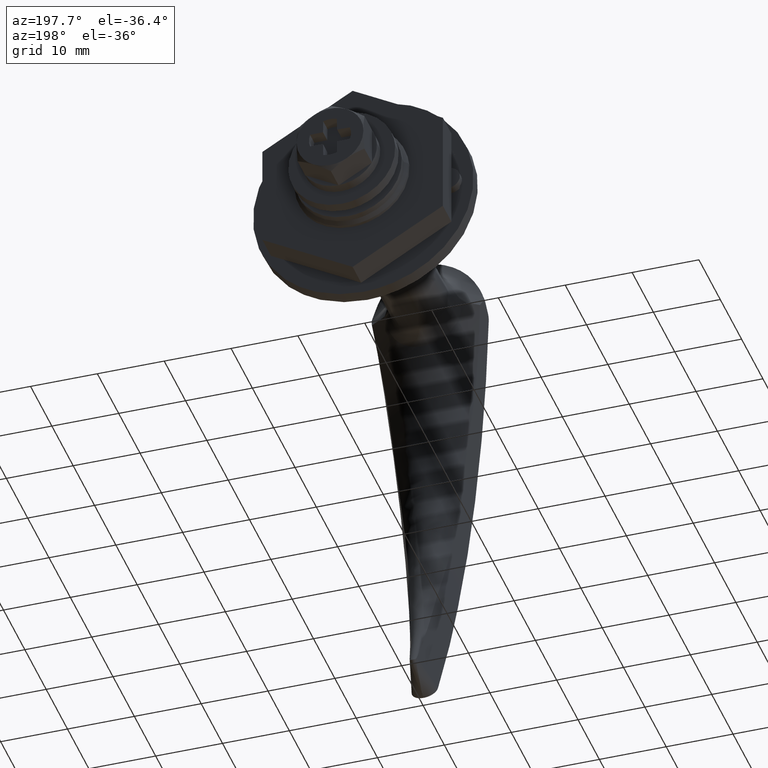
[diagram: clean part render]
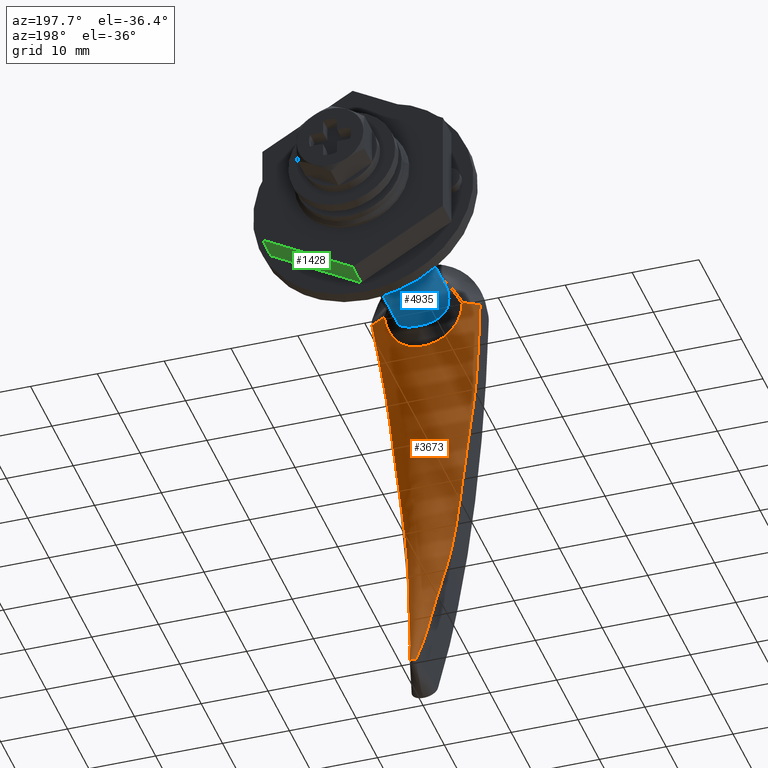
[diagram: same view with three faces highlighted in distinct colors, each labeled with its STEP entity id]
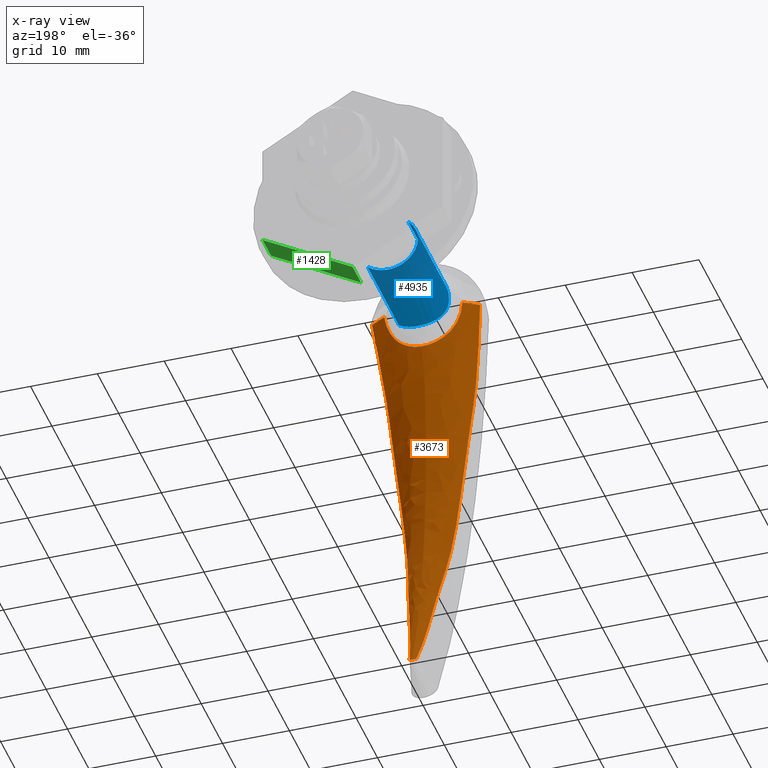
[diagram: x-ray of the same camera — body ghosted, the three highlighted faces saturated]
A machine part, auxiliary view with three faces highlighted in distinct colors.
The next image is the same camera in x-ray (body ghosted, the three faces saturated) — at least one of them is partly hidden behind the body in this view.
Their STEP definitions:

[orange] entity #3673 — the highlighted face is a freeform B-spline surface patch.
#2521=CARTESIAN_POINT('',(-0.936095192163730,-16.888858309234301,-61.499283405805400));
#2522=VERTEX_POINT('',#2521);
#2523=CARTESIAN_POINT('',(-0.528894862395192,-15.383664728495850,-65.001346558979094));
#2524=VERTEX_POINT('',#2523);
#2525=CARTESIAN_POINT('',(-0.936095192163729,-16.888858309234319,-61.499283405805372));
#2526=CARTESIAN_POINT('',(-0.798349343913122,-16.438143856093859,-62.684922845513363));
#2527=CARTESIAN_POINT('',(-0.663209480063971,-15.921364753533171,-63.846883866077107));
#2528=CARTESIAN_POINT('',(-0.528894862369655,-15.383664728393621,-65.001346559198652));
#2529=B_SPLINE_CURVE_WITH_KNOTS('',3,(#2525,#2526,#2527,#2528),.UNSPECIFIED.,.F.,.U.,(4,4),(0.950497373689708,1.0),.UNSPECIFIED.);
#2530=EDGE_CURVE('',#2522,#2524,#2529,.T.);
#2567=CARTESIAN_POINT('',(-8.088483985118950,-21.382506893682351,-9.733266E-016));
#2568=VERTEX_POINT('',#2567);
#2578=CARTESIAN_POINT('',(-6.751103507324760,-23.779140182856150,-11.499283405805359));
#2579=VERTEX_POINT('',#2578);
#2580=CARTESIAN_POINT('',(-8.088483985118950,-21.382506893682351,-9.733266E-016));
#2581=CARTESIAN_POINT('',(-7.646711654758347,-22.323849103457000,-3.798164090232185));
#2582=CARTESIAN_POINT('',(-7.199685001141654,-23.414148875372089,-7.640797533302037));
#2583=CARTESIAN_POINT('',(-6.751103507324760,-23.779140182856150,-11.499283405805359));
#2584=B_SPLINE_CURVE_WITH_KNOTS('',3,(#2580,#2581,#2582,#2583),.UNSPECIFIED.,.F.,.U.,(4,4),(0.114391476882390,0.266825240320656),.UNSPECIFIED.);
#2585=EDGE_CURVE('',#2568,#2579,#2584,.T.);
#2587=CARTESIAN_POINT('',(-5.588101844292540,-23.779140182856150,-21.499283405805350));
#2588=VERTEX_POINT('',#2587);
#2589=CARTESIAN_POINT('',(-6.751103507324756,-23.779140182856182,-11.499283405805370));
#2590=CARTESIAN_POINT('',(-6.364611216995100,-24.093634709751100,-14.823736254819901));
#2591=CARTESIAN_POINT('',(-5.976964580798010,-23.869697234583612,-18.159957253374909));
#2592=CARTESIAN_POINT('',(-5.588101844292536,-23.779140182856189,-21.499283405805372));
#2593=B_SPLINE_CURVE_WITH_KNOTS('',3,(#2589,#2590,#2591,#2592),.UNSPECIFIED.,.F.,.U.,(4,4),(0.266825446176739,0.398161814584562),.UNSPECIFIED.);
#2594=EDGE_CURVE('',#2579,#2588,#2593,.T.);
#2596=CARTESIAN_POINT('',(-4.425100181260334,-23.694648049077550,-31.499283405805301));
#2597=VERTEX_POINT('',#2596);
#2598=CARTESIAN_POINT('',(-5.588101844292535,-23.779140182856189,-21.499283405805372));
#2599=CARTESIAN_POINT('',(-5.200140678368175,-23.688793085866219,-24.830867396446742));
#2600=CARTESIAN_POINT('',(-4.810969044607601,-23.731208649523399,-28.165542159178869));
#2601=CARTESIAN_POINT('',(-4.425100181260361,-23.694648049077550,-31.499283405805130));
#2602=B_SPLINE_CURVE_WITH_KNOTS('',3,(#2598,#2599,#2600,#2601),.UNSPECIFIED.,.F.,.U.,(4,4),(0.398161814584562,0.529193682213912),.UNSPECIFIED.);
#2603=EDGE_CURVE('',#2588,#2597,#2602,.T.);
#2605=CARTESIAN_POINT('',(-3.269030969239590,-22.851923162419649,-41.499283405805400));
#2606=VERTEX_POINT('',#2605);
#2607=CARTESIAN_POINT('',(-4.425100181260334,-23.694648049077550,-31.499283405805301));
#2608=CARTESIAN_POINT('',(-4.038260906510820,-23.657995503344271,-34.841408590150493));
#2609=CARTESIAN_POINT('',(-3.654741035163267,-23.541969063882121,-38.182595557135862));
#2610=CARTESIAN_POINT('',(-3.269030969239605,-22.851923162419670,-41.499283405805251));
#2611=B_SPLINE_CURVE_WITH_KNOTS('',3,(#2607,#2608,#2609,#2610),.UNSPECIFIED.,.F.,.U.,(4,4),(0.529193682213912,0.660555078422762),.UNSPECIFIED.);
#2612=EDGE_CURVE('',#2597,#2606,#2611,.T.);
#2614=CARTESIAN_POINT('',(-2.099096855196010,-19.870390735827201,-51.499283405804597));
#2615=VERTEX_POINT('',#2614);
#2616=CARTESIAN_POINT('',(-3.269030969239593,-22.851923162419649,-41.499283405805372));
#2617=CARTESIAN_POINT('',(-2.879936942777780,-22.155823262613989,-44.845069641550523));
#2618=CARTESIAN_POINT('',(-2.488614122571357,-20.875587596906119,-48.165924995698823));
#2619=CARTESIAN_POINT('',(-2.099096855195920,-19.870390735826991,-51.499283405805379));
#2620=B_SPLINE_CURVE_WITH_KNOTS('',3,(#2616,#2617,#2618,#2619),.UNSPECIFIED.,.F.,.U.,(4,4),(0.660555078422762,0.793068951116620),.UNSPECIFIED.);
#2621=EDGE_CURVE('',#2606,#2615,#2620,.T.);
#2623=CARTESIAN_POINT('',(-2.099096855196010,-19.870390735827201,-51.499283405804597));
#2624=CARTESIAN_POINT('',(-1.703778340289075,-18.850223047271140,-54.882286950717408));
#2625=CARTESIAN_POINT('',(-1.310319560453279,-18.113347712345551,-58.278168751687723));
#2626=CARTESIAN_POINT('',(-0.936095192163935,-16.888858309234990,-61.499283405803617));
#2627=B_SPLINE_CURVE_WITH_KNOTS('',3,(#2623,#2624,#2625,#2626),.UNSPECIFIED.,.F.,.U.,(4,4),(0.793068951116620,0.927556409685384),.UNSPECIFIED.);
#2628=EDGE_CURVE('',#2615,#2522,#2627,.T.);
#2679=CARTESIAN_POINT('',(0.528960554337243,-15.383618505720600,-65.001445800931393));
#2680=VERTEX_POINT('',#2679);
#2690=CARTESIAN_POINT('',(0.936095192163724,-16.888858309234301,-61.499283405805400));
#2691=VERTEX_POINT('',#2690);
#2692=CARTESIAN_POINT('',(0.936095192163723,-16.888858309234340,-61.499283405805372));
#2693=CARTESIAN_POINT('',(0.798468901715885,-16.438130941055171,-62.684956819527628));
#2694=CARTESIAN_POINT('',(0.663322150178502,-15.921335137290400,-63.846950457095353));
#2695=CARTESIAN_POINT('',(0.528960554311548,-15.383618505617770,-65.001445801152158));
#2696=B_SPLINE_CURVE_WITH_KNOTS('',3,(#2692,#2693,#2694,#2695),.UNSPECIFIED.,.F.,.U.,(4,4),(0.927556409685384,0.977060454473231),.UNSPECIFIED.);
#2697=EDGE_CURVE('',#2691,#2680,#2696,.T.);
#2699=CARTESIAN_POINT('',(2.099096855196020,-19.870390735827201,-51.499283405804597));
#2700=VERTEX_POINT('',#2699);
#2701=CARTESIAN_POINT('',(2.099096855196020,-19.870390735827201,-51.499283405804597));
#2702=CARTESIAN_POINT('',(1.702172964400864,-18.850223047269989,-54.882286950722730));
#2703=CARTESIAN_POINT('',(1.309984035265291,-18.113347712344389,-58.278168751691183));
#2704=CARTESIAN_POINT('',(0.936095192163723,-16.888858309234340,-61.499283405805372));
#2705=B_SPLINE_CURVE_WITH_KNOTS('',3,(#2701,#2702,#2703,#2704),.UNSPECIFIED.,.F.,.U.,(4,4),(0.793068951116620,0.927556409685384),.UNSPECIFIED.);
#2706=EDGE_CURVE('',#2700,#2691,#2705,.T.);
#2708=CARTESIAN_POINT('',(3.274967676832765,-22.851923162419649,-41.499283405805400));
#2709=VERTEX_POINT('',#2708);
#2710=CARTESIAN_POINT('',(3.274967676832765,-22.851923162419649,-41.499283405805372));
#2711=CARTESIAN_POINT('',(2.885892035814828,-22.155823262614550,-44.845069641547823));
#2712=CARTESIAN_POINT('',(2.490195939778304,-20.875587596908179,-48.165924995693437));
#2713=CARTESIAN_POINT('',(2.099096855196560,-19.870390735828611,-51.499283405799979));
#2714=B_SPLINE_CURVE_WITH_KNOTS('',3,(#2710,#2711,#2712,#2713),.UNSPECIFIED.,.F.,.U.,(4,4),(0.660555078422762,0.793068951116620),.UNSPECIFIED.);
#2715=EDGE_CURVE('',#2709,#2700,#2714,.T.);
#2717=CARTESIAN_POINT('',(4.425100181260399,-23.694648049077550,-31.499283405804849));
#2718=VERTEX_POINT('',#2717);
#2719=CARTESIAN_POINT('',(4.425100181260399,-23.694648049077550,-31.499283405804849));
#2720=CARTESIAN_POINT('',(4.039845558340035,-23.657995503344321,-34.841408590148923));
#2721=CARTESIAN_POINT('',(3.660659517211682,-23.541969063882298,-38.182595557134682));
#2722=CARTESIAN_POINT('',(3.274967676832878,-22.851923162419869,-41.499283405804412));
#2723=B_SPLINE_CURVE_WITH_KNOTS('',3,(#2719,#2720,#2721,#2722),.UNSPECIFIED.,.F.,.U.,(4,4),(0.529193682213912,0.660555078422762),.UNSPECIFIED.);
#2724=EDGE_CURVE('',#2718,#2709,#2723,.T.);
#2726=CARTESIAN_POINT('',(5.588101844292590,-23.779140182856199,-21.499283405804899));
#2727=VERTEX_POINT('',#2726);
#2728=CARTESIAN_POINT('',(5.588101844292590,-23.779140182856199,-21.499283405804899));
#2729=CARTESIAN_POINT('',(5.199714727820138,-23.688793085866219,-24.830867396444390));
#2730=CARTESIAN_POINT('',(4.809388367980755,-23.731208649523388,-28.165542159176141));
#2731=CARTESIAN_POINT('',(4.425100181260645,-23.694648049077578,-31.499283405802728));
#2732=B_SPLINE_CURVE_WITH_KNOTS('',3,(#2728,#2729,#2730,#2731),.UNSPECIFIED.,.F.,.U.,(4,4),(0.398161814584562,0.529193682213912),.UNSPECIFIED.);
#2733=EDGE_CURVE('',#2727,#2718,#2732,.T.);
#2735=CARTESIAN_POINT('',(6.751103507324751,-23.779140182856150,-11.499283405805359));
#2736=VERTEX_POINT('',#2735);
#2737=CARTESIAN_POINT('',(6.751103507324751,-23.779140182856150,-11.499283405805359));
#2738=CARTESIAN_POINT('',(6.364732931175000,-24.093634709751001,-14.823736254819011));
#2739=CARTESIAN_POINT('',(5.977391521199411,-23.869697234583700,-18.159957253373260));
#2740=CARTESIAN_POINT('',(5.588101844292726,-23.779140182856221,-21.499283405803741));
#2741=B_SPLINE_CURVE_WITH_KNOTS('',3,(#2737,#2738,#2739,#2740),.UNSPECIFIED.,.F.,.U.,(4,4),(0.266825446176739,0.398161814584562),.UNSPECIFIED.);
#2742=EDGE_CURVE('',#2736,#2727,#2741,.T.);
#2744=CARTESIAN_POINT('',(8.088482069417280,-21.382495183006249,-6.924774E-016));
#2745=VERTEX_POINT('',#2744);
#2746=CARTESIAN_POINT('',(8.088482069417280,-21.382495183006249,-6.924774E-016));
#2747=CARTESIAN_POINT('',(7.646675052009778,-22.323841225934618,-3.798164071948524));
#2748=CARTESIAN_POINT('',(7.199543109899522,-23.414145156894989,-7.640797506848593));
#2749=CARTESIAN_POINT('',(6.751103507324751,-23.779140182856150,-11.499283405805359));
#2750=B_SPLINE_CURVE_WITH_KNOTS('',3,(#2746,#2747,#2748,#2749),.UNSPECIFIED.,.F.,.U.,(4,4),(0.114391649388677,0.266825446176739),.UNSPECIFIED.);
#2751=EDGE_CURVE('',#2745,#2736,#2750,.T.);
#2980=CARTESIAN_POINT('',(0.473062359060490,-15.243420604777899,-65.240186958622303));
#2981=VERTEX_POINT('',#2980);
#2982=CARTESIAN_POINT('',(-0.472946660505211,-15.243359792136999,-65.240233146166105));
#2983=VERTEX_POINT('',#2982);
#2984=CARTESIAN_POINT('',(0.473062359060490,-15.243420604777899,-65.240186958622303));
#2985=CARTESIAN_POINT('',(0.465655563365437,-15.229184616225851,-65.261613286199875));
#2986=CARTESIAN_POINT('',(0.456478213055548,-15.214206306947590,-65.281383953726703));
#2987=CARTESIAN_POINT('',(0.434262786302167,-15.183519957991130,-65.318043441652918));
#2988=CARTESIAN_POINT('',(0.421154714192696,-15.167738909287550,-65.335020114214188));
#2989=CARTESIAN_POINT('',(0.391058696393047,-15.136560645947270,-65.366170972555835));
#2990=CARTESIAN_POINT('',(0.374381847425318,-15.121464458860229,-65.380072144479954));
#2991=CARTESIAN_POINT('',(0.337833807471824,-15.092755469890321,-65.405165636203748));
#2992=CARTESIAN_POINT('',(0.317797058332560,-15.079043145164629,-65.416426259056379));
#2993=CARTESIAN_POINT('',(0.275178927881088,-15.054007097903920,-65.436155808122578));
#2994=CARTESIAN_POINT('',(0.252797803823723,-15.042767754233040,-65.444568362405718));
#2995=CARTESIAN_POINT('',(0.205947707107045,-15.023012972925841,-65.458879276219477));
#2996=CARTESIAN_POINT('',(0.181271362018407,-15.014441540185789,-65.464806256087726));
#2997=CARTESIAN_POINT('',(0.130774303828736,-15.000613505204900,-65.474086737779061));
#2998=CARTESIAN_POINT('',(0.105119458830532,-14.995368828523370,-65.477436191617301));
#2999=CARTESIAN_POINT('',(0.053018971374140,-14.988280770745931,-65.481858304730508));
#3000=CARTESIAN_POINT('',(0.026393253199720,-14.986438755105580,-65.482928154658836));
#3001=CARTESIAN_POINT('',(-0.053468094635066,-14.986474867041441,-65.482905138988471));
#3002=CARTESIAN_POINT('',(-0.105674277929958,-14.993720449049510,-65.478711428606204));
#3003=CARTESIAN_POINT('',(-0.207048169821805,-15.021558269549780,-65.460015863832425));
#3004=CARTESIAN_POINT('',(-0.253782678546753,-15.041466113574200,-65.446029039651989));
#3005=CARTESIAN_POINT('',(-0.339270321542155,-15.091713590798991,-65.406419793635678));
#3006=CARTESIAN_POINT('',(-0.375837052175094,-15.120891664528489,-65.381791893670822));
#3007=CARTESIAN_POINT('',(-0.420946325453554,-15.167590997507570,-65.335146383167057));
#3008=CARTESIAN_POINT('',(-0.434107099948926,-15.183421152871411,-65.318124046908750));
#3009=CARTESIAN_POINT('',(-0.456351785304115,-15.214134500053580,-65.281439861371041));
#3010=CARTESIAN_POINT('',(-0.465536258252690,-15.229120823670799,-65.261660873431751));
#3011=CARTESIAN_POINT('',(-0.472946660505210,-15.243359792136999,-65.240233146166105));
#3012=B_SPLINE_CURVE_WITH_KNOTS('',3,(#2984,#2985,#2986,#2987,#2988,#2989,#2990,#2991,#2992,#2993,#2994,#2995,#2996,#2997,#2998,#2999,#3000,#3001,#3002,#3003,#3004,#3005,#3006,#3007,#3008,#3009,#3010,#3011),.UNSPECIFIED.,.F.,.U.,(4,2,2,2,2,2,2,2,2,2,2,2,2,4),(0.0,0.062499999999999,0.124999999999998,0.187499999999996,0.249999999999995,0.312499999999994,0.374999999999993,0.437499999999992,0.499999999999991,0.624999999999988,0.749999999999986,0.874999999999983,0.937499999999992,1.0),.UNSPECIFIED.);
#3013=EDGE_CURVE('',#2981,#2983,#3012,.T.);
#3136=CARTESIAN_POINT('',(-0.472946660505211,-15.243359792136999,-65.240233146166105));
#3137=CARTESIAN_POINT('',(-0.485994346995966,-15.268430711389151,-65.202504793771070));
#3138=CARTESIAN_POINT('',(-0.497482841430561,-15.293516185885711,-65.163937324947369));
#3139=CARTESIAN_POINT('',(-0.516424258563482,-15.341146708324750,-65.084808038804582));
#3140=CARTESIAN_POINT('',(-0.523918747026638,-15.363743908225709,-65.044117328447740));
#3141=CARTESIAN_POINT('',(-0.528894862411646,-15.383664728561749,-65.001346558837696));
#3142=B_SPLINE_CURVE_WITH_KNOTS('',3,(#3136,#3137,#3138,#3139,#3140,#3141),.UNSPECIFIED.,.F.,.U.,(4,2,4),(0.0,0.500000000000000,1.0),.UNSPECIFIED.);
#3143=EDGE_CURVE('',#2983,#2524,#3142,.T.);
#3202=CARTESIAN_POINT('',(0.528960554337243,-15.383618505720600,-65.001445800931393));
#3203=CARTESIAN_POINT('',(0.523943298694641,-15.363539391692870,-65.044556321031706));
#3204=CARTESIAN_POINT('',(0.516404157904129,-15.340870695011400,-65.085309472388758));
#3205=CARTESIAN_POINT('',(0.497473727034862,-15.293312836796950,-65.164289747596854));
#3206=CARTESIAN_POINT('',(0.486080663050162,-15.268442008660200,-65.202527698493768));
#3207=CARTESIAN_POINT('',(0.473062359060490,-15.243420604777871,-65.240186958622374));
#3208=B_SPLINE_CURVE_WITH_KNOTS('',3,(#3202,#3203,#3204,#3205,#3206,#3207),.UNSPECIFIED.,.F.,.U.,(4,2,4),(0.0,0.500000000000000,1.0),.UNSPECIFIED.);
#3209=EDGE_CURVE('',#2680,#2981,#3208,.T.);
#3295=CARTESIAN_POINT('',(7.549867806415940,-21.024086152352051,-6.003296E-015));
#3296=VERTEX_POINT('',#3295);
#3297=CARTESIAN_POINT('',(5.857229571556770,-20.101661449105151,0.035567156138035));
#3298=VERTEX_POINT('',#3297);
#3299=CARTESIAN_POINT('',(7.549867806415940,-21.024086152352051,-6.003296E-015));
#3300=CARTESIAN_POINT('',(7.369646208083029,-20.910153745346719,0.000239818275979));
#3301=CARTESIAN_POINT('',(7.187071821424181,-20.800503841033532,0.000612860338329));
#3302=CARTESIAN_POINT('',(6.817312537932703,-20.589600308791809,0.001855682285376));
#3303=CARTESIAN_POINT('',(6.630110637974187,-20.488375066183171,0.002586230028108));
#3304=CARTESIAN_POINT('',(6.346042848445002,-20.342508756540521,0.005440367236168));
#3305=CARTESIAN_POINT('',(6.250797034728270,-20.294902644064020,0.006585553348060));
#3306=CARTESIAN_POINT('',(6.107328495506790,-20.224625066406318,0.010514603477155));
#3307=CARTESIAN_POINT('',(6.059400903202358,-20.201395781018078,0.012153830292317));
#3308=CARTESIAN_POINT('',(5.987537916663094,-20.166537023309981,0.016627308546143));
#3309=CARTESIAN_POINT('',(5.963610831342872,-20.154924301205099,0.018459425340058));
#3310=CARTESIAN_POINT('',(5.916043823452519,-20.131579324028259,0.023724718489827));
#3311=CARTESIAN_POINT('',(5.892383592978966,-20.119855581266840,0.027089547336188));
#3312=CARTESIAN_POINT('',(5.865145724221026,-20.105797464413310,0.033486333590718));
#3313=CARTESIAN_POINT('',(5.861173442102449,-20.103731561173412,0.034489219197451));
#3314=CARTESIAN_POINT('',(5.857229571556770,-20.101661449105151,0.035567156138035));
#3315=B_SPLINE_CURVE_WITH_KNOTS('',3,(#3299,#3300,#3301,#3302,#3303,#3304,#3305,#3306,#3307,#3308,#3309,#3310,#3311,#3312,#3313,#3314),.UNSPECIFIED.,.F.,.U.,(4,2,2,2,2,2,2,4),(0.0,0.031250000000001,0.062500000000002,0.078125000000003,0.085937500000003,0.089843750000003,0.093750000000003,0.094421041568891),.UNSPECIFIED.);
#3316=EDGE_CURVE('',#3296,#3298,#3315,.T.);
#3318=CARTESIAN_POINT('',(-5.857224625174820,-20.101672294141451,0.035517501564655));
#3319=VERTEX_POINT('',#3318);
#3421=CARTESIAN_POINT('',(-7.549863973523871,-21.024092193102550,2.557967E-012));
#3422=VERTEX_POINT('',#3421);
#3423=CARTESIAN_POINT('',(-5.857224625174820,-20.101672294141451,0.035517501564655));
#3424=CARTESIAN_POINT('',(-5.862660252537911,-20.104523868792601,0.034038280543897));
#3425=CARTESIAN_POINT('',(-5.868133488198244,-20.107359057268742,0.032705249460290));
#3426=CARTESIAN_POINT('',(-5.896739196471095,-20.122039471806399,0.026359310743250));
#3427=CARTESIAN_POINT('',(-5.920324786497396,-20.133700505262841,0.023141459177731));
#3428=CARTESIAN_POINT('',(-5.967801827390764,-20.156967139113771,0.018092956824327));
#3429=CARTESIAN_POINT('',(-5.991706425850509,-20.168563478147028,0.016321062450402));
#3430=CARTESIAN_POINT('',(-6.063339468743775,-20.203304978309610,0.011993156736721));
#3431=CARTESIAN_POINT('',(-6.111120092118398,-20.226473415541811,0.010387800353010));
#3432=CARTESIAN_POINT('',(-6.254179106098261,-20.296583770734909,0.006538903539400));
#3433=CARTESIAN_POINT('',(-6.349192178268510,-20.344102222043269,0.005402689136848));
#3434=CARTESIAN_POINT('',(-6.632685390397803,-20.489752962839798,0.002577419455960));
#3435=CARTESIAN_POINT('',(-6.819676689340966,-20.590915724176881,0.001847532770195));
#3436=CARTESIAN_POINT('',(-7.188481774202253,-20.801351868516310,0.000610831010062));
#3437=CARTESIAN_POINT('',(-7.370422021852940,-20.910651601502590,0.000239248173347));
#3438=CARTESIAN_POINT('',(-7.549863973523871,-21.024092193102550,2.557967E-012));
#3439=B_SPLINE_CURVE_WITH_KNOTS('',3,(#3423,#3424,#3425,#3426,#3427,#3428,#3429,#3430,#3431,#3432,#3433,#3434,#3435,#3436,#3437,#3438),.UNSPECIFIED.,.F.,.U.,(4,2,2,2,2,2,2,4),(0.905319809649391,0.906250000000000,0.910156250000000,0.914062500000000,0.921875000000000,0.937500000000000,0.968750000000000,1.0),.UNSPECIFIED.);
#3440=EDGE_CURVE('',#3319,#3422,#3439,.T.);
#3442=CARTESIAN_POINT('',(-8.088483985118950,-21.382506893682351,-9.733266E-016));
#3443=CARTESIAN_POINT('',(-7.911730218550651,-21.258807354613271,-1.360676E-009));
#3444=CARTESIAN_POINT('',(-7.732120439703193,-21.139313414308170,-6.145438E-009));
#3445=CARTESIAN_POINT('',(-7.549863973523871,-21.024092193102550,2.557967E-012));
#3446=QUASI_UNIFORM_CURVE('',3,(#3442,#3443,#3444,#3445),.UNSPECIFIED.,.F.,.U.);
#3447=EDGE_CURVE('',#2568,#3422,#3446,.T.);
#3452=CARTESIAN_POINT('',(8.088482069417280,-21.382495183006249,-6.924774E-016));
#3453=CARTESIAN_POINT('',(7.911730354179802,-21.258797524556950,-2.754892E-009));
#3454=CARTESIAN_POINT('',(7.732122441745426,-21.139305544909629,-0.000000012424331));
#3455=CARTESIAN_POINT('',(7.549867806415940,-21.024086152352051,-6.003296E-015));
#3456=QUASI_UNIFORM_CURVE('',3,(#3452,#3453,#3454,#3455),.UNSPECIFIED.,.F.,.U.);
#3457=EDGE_CURVE('',#2745,#3296,#3456,.T.);
#3462=CARTESIAN_POINT('',(8.311863625289965,-21.311841984994061,0.685517487341226));
#3463=CARTESIAN_POINT('',(8.263884882292487,-21.279300848782839,0.685517055661292));
#3464=CARTESIAN_POINT('',(7.024179998992048,-20.422081925331909,0.685505682910764));
#3465=CARTESIAN_POINT('',(4.332480525373655,-19.136887506553371,0.685488673967844));
#3466=CARTESIAN_POINT('',(1.445734645399700,-18.691632146297010,0.685482836077002));
#3467=CARTESIAN_POINT('',(-1.445721522520780,-18.691627052549521,0.685482836068194));
#3468=CARTESIAN_POINT('',(-2.889116621870327,-18.914270013920120,0.685485755040039));
#3469=CARTESIAN_POINT('',(-5.651914323963551,-19.766871674336969,0.685497011626594));
#3470=CARTESIAN_POINT('',(-7.024183868467404,-20.422088019677361,0.685505682935068));
#3471=CARTESIAN_POINT('',(-8.263883679893832,-21.279303962913641,0.685517055702606));
#3472=CARTESIAN_POINT('',(-8.311864703038035,-21.311846636178139,0.685517487402929));
#3473=CARTESIAN_POINT('',(7.831196850366551,-22.291773181048040,-3.335599108479981));
#3474=CARTESIAN_POINT('',(7.787519512013698,-22.257967473729391,-3.335596710106975));
#3475=CARTESIAN_POINT('',(6.660913889328575,-21.368007915237001,-3.335533524177425));
#3476=CARTESIAN_POINT('',(4.147020277516686,-20.014603340607199,-3.335439024094428));
#3477=CARTESIAN_POINT('',(1.383551780891372,-19.544707043528110,-3.335406589323401));
#3478=CARTESIAN_POINT('',(-1.383604157327135,-19.544723517650080,-3.335406589274466));
#3479=CARTESIAN_POINT('',(-2.765246340416562,-19.779622243823699,-3.335422806806786));
#3480=CARTESIAN_POINT('',(-5.379396878876372,-20.678066000522961,-3.335485347340241));
#3481=CARTESIAN_POINT('',(-6.660908407448659,-21.367993334780799,-3.335533524312460));
#3482=CARTESIAN_POINT('',(-7.787545323017660,-22.257970707569211,-3.335596710336510));
#3483=CARTESIAN_POINT('',(-7.831224738201906,-22.291778011988839,-3.335599108822799));
#3484=CARTESIAN_POINT('',(6.931291475636001,-24.506215684028781,-10.718494881420670));
#3485=CARTESIAN_POINT('',(6.901100897126412,-24.460687737310788,-10.718495778438610));
#3486=CARTESIAN_POINT('',(6.133481332694653,-23.265789735379968,-10.718519410672640));
#3487=CARTESIAN_POINT('',(4.037660485096200,-21.326764300697938,-10.718554754745179));
#3488=CARTESIAN_POINT('',(1.343230497760493,-20.659023080064092,-10.718566885707011));
#3489=CARTESIAN_POINT('',(-1.343812032065645,-20.659207571049290,-10.718566885725309));
#3490=CARTESIAN_POINT('',(-2.690044026826280,-20.992524708410642,-10.718560820189490));
#3491=CARTESIAN_POINT('',(-5.065915177718875,-22.277624164904388,-10.718537429340710));
#3492=CARTESIAN_POINT('',(-6.133422086720820,-23.265614145760559,-10.718519410622131));
#3493=CARTESIAN_POINT('',(-6.901357589305016,-24.460692084174319,-10.718495778352761));
#3494=CARTESIAN_POINT('',(-6.931549609581079,-24.506222183807839,-10.718494881292459));
#3495=CARTESIAN_POINT('',(5.680769966418884,-23.731919739735460,-21.488443951275240));
#3496=CARTESIAN_POINT('',(5.650722245378420,-23.703497770993760,-21.488443732845290));
#3497=CARTESIAN_POINT('',(4.878016791093706,-22.954769873465921,-21.488437978236011));
#3498=CARTESIAN_POINT('',(3.067744247178395,-21.831336038975561,-21.488429371714549));
#3499=CARTESIAN_POINT('',(1.029207454558515,-21.408518659609548,-21.488426417743039));
#3500=CARTESIAN_POINT('',(-1.028353304449013,-21.408454928280751,-21.488426417738570));
#3501=CARTESIAN_POINT('',(-2.047989774226896,-21.620054811950130,-21.488427894737729));
#3502=CARTESIAN_POINT('',(-3.954156254676445,-22.381911174153831,-21.488433590568061));
#3503=CARTESIAN_POINT('',(-4.877404987397912,-22.954832199264150,-21.488437978248321));
#3504=CARTESIAN_POINT('',(-5.649993616927197,-23.703500490836170,-21.488443732866202));
#3505=CARTESIAN_POINT('',(-5.680042768144713,-23.731923802087788,-21.488443951306468));
#3506=CARTESIAN_POINT('',(4.475119353811887,-23.864553804898129,-31.508603030662659));
#3507=CARTESIAN_POINT('',(4.455962799260609,-23.834378725141711,-31.508603089282769));
#3508=CARTESIAN_POINT('',(3.969549113824452,-23.042256946553959,-31.508604633648940));
#3509=CARTESIAN_POINT('',(2.617835101862652,-21.761595799254170,-31.508606943383619));
#3510=CARTESIAN_POINT('',(0.870244968865874,-21.319949460643510,-31.508607736141862));
#3511=CARTESIAN_POINT('',(-0.873182624074751,-21.320034549539351,-31.508607736143048));
#3512=CARTESIAN_POINT('',(-1.746379645034755,-21.540602452157149,-31.508607339760349));
#3513=CARTESIAN_POINT('',(-3.283566078905713,-22.389534681986369,-31.508605811168660));
#3514=CARTESIAN_POINT('',(-3.972096996693819,-23.042176322685378,-31.508604633645639));
#3515=CARTESIAN_POINT('',(-4.458702896374756,-23.834381606470629,-31.508603089277159));
#3516=CARTESIAN_POINT('',(-4.477860366139773,-23.864558113064930,-31.508603030654282));
#3517=CARTESIAN_POINT('',(3.288766442050239,-23.523119556051270,-41.553095897847577));
#3518=CARTESIAN_POINT('',(3.284991775006411,-23.490426692499518,-41.553095881960253));
#3519=CARTESIAN_POINT('',(3.205978359168440,-22.638121341328048,-41.553095463403032));
#3520=CARTESIAN_POINT('',(2.398909247949323,-21.068743038515368,-41.553094837414143));
#3521=CARTESIAN_POINT('',(0.803263035014418,-20.457153908149770,-41.553094622559172));
#3522=CARTESIAN_POINT('',(-0.793547163744338,-20.457743134851150,-41.553094622558852));
#3523=CARTESIAN_POINT('',(-1.589646880890355,-20.761770019929749,-41.553094729987301));
#3524=CARTESIAN_POINT('',(-2.785365903424288,-21.839198122206621,-41.553095144269292));
#3525=CARTESIAN_POINT('',(-3.195136408082307,-22.637556239793881,-41.553095463403920));
#3526=CARTESIAN_POINT('',(-3.274701754648758,-23.490429801335839,-41.553095881961767));
#3527=CARTESIAN_POINT('',(-3.278476611415802,-23.523124213904900,-41.553095897849857));
#3528=CARTESIAN_POINT('',(2.125471913886405,-19.607830810602920,-51.536239257652589));
#3529=CARTESIAN_POINT('',(2.113153794695063,-19.597376080963961,-51.536239262062907));
#3530=CARTESIAN_POINT('',(1.795151875074195,-19.320672784170458,-51.536239378254201));
#3531=CARTESIAN_POINT('',(1.090732088326564,-18.946338835523239,-51.536239552028363));
#3532=CARTESIAN_POINT('',(0.366065482415882,-18.811932578499530,-51.536239611672023));
#3533=CARTESIAN_POINT('',(-0.368763038370859,-18.811768682239780,-51.536239611672109));
#3534=CARTESIAN_POINT('',(-0.731573448550545,-18.879463499530889,-51.536239581850012));
#3535=CARTESIAN_POINT('',(-1.438578842096935,-19.129513477553619,-51.536239466845537));
#3536=CARTESIAN_POINT('',(-1.798162040278058,-19.320830724703839,-51.536239378253953));
#3537=CARTESIAN_POINT('',(-2.116011549435092,-19.597377084177769,-51.536239262062487));
#3538=CARTESIAN_POINT('',(-2.128330254282795,-19.607832306979990,-51.536239257651957));
#3539=CARTESIAN_POINT('',(1.125962613849636,-17.791458906824278,-59.921770956509100));
#3540=CARTESIAN_POINT('',(1.123953624846354,-17.779903351854841,-59.921770956078227));
#3541=CARTESIAN_POINT('',(1.077792335460877,-17.477147920335590,-59.921770944726738));
#3542=CARTESIAN_POINT('',(0.776091033948505,-16.966914405426120,-59.921770927749492));
#3543=CARTESIAN_POINT('',(0.263085085673646,-16.759219639196321,-59.921770921922452));
#3544=CARTESIAN_POINT('',(-0.262821906046224,-16.759235485047430,-59.921770921922487));
#3545=CARTESIAN_POINT('',(-0.519277175935762,-16.863035330609019,-59.921770924835982));
#3546=CARTESIAN_POINT('',(-0.923735210034563,-17.217058722997411,-59.921770936071603));
#3547=CARTESIAN_POINT('',(-1.077498244865663,-17.477133158872281,-59.921770944726759));
#3548=CARTESIAN_POINT('',(-1.123674720032408,-17.779904453825552,-59.921770956078277));
#3549=CARTESIAN_POINT('',(-1.125683807809009,-17.791460555550369,-59.921770956509157));
#3550=CARTESIAN_POINT('',(0.584793638661137,-15.600152455700201,-64.576371176445136));
#3551=CARTESIAN_POINT('',(0.582657999699014,-15.596551995528969,-64.576371176281626));
#3552=CARTESIAN_POINT('',(0.529052962008428,-15.502236973863500,-64.576371171973989));
#3553=CARTESIAN_POINT('',(0.357441142552196,-15.342727261638361,-64.576371165531484));
#3554=CARTESIAN_POINT('',(0.120523308145533,-15.277687997872240,-64.576371163320346));
#3555=CARTESIAN_POINT('',(-0.120423415173399,-15.277694021364759,-64.576371163320331));
#3556=CARTESIAN_POINT('',(-0.238864297911385,-15.310195582770270,-64.576371164425922));
#3557=CARTESIAN_POINT('',(-0.441470056142412,-15.420929726956050,-64.576371168689548));
#3558=CARTESIAN_POINT('',(-0.528941436800368,-15.502231330520271,-64.576371171974017));
#3559=CARTESIAN_POINT('',(-0.582552293325337,-15.596552338841169,-64.576371176281626));
#3560=CARTESIAN_POINT('',(-0.584688034685475,-15.600152969378691,-64.576371176445150));
#3561=CARTESIAN_POINT('',(0.408928816268869,-14.873740044635699,-66.090340510079002));
#3562=CARTESIAN_POINT('',(0.406684442536318,-14.872825998607491,-66.090340510036583));
#3563=CARTESIAN_POINT('',(0.348829874376401,-14.848882848784580,-66.090340508918928));
#3564=CARTESIAN_POINT('',(0.218452260590317,-14.808371609453800,-66.090340507247276));
#3565=CARTESIAN_POINT('',(0.073167092776843,-14.791849947795351,-66.090340506673613));
#3566=CARTESIAN_POINT('',(-0.073141173672156,-14.791851510934670,-66.090340506673613));
#3567=CARTESIAN_POINT('',(-0.145779080052931,-14.800107652345950,-66.090340506960445));
#3568=CARTESIAN_POINT('',(-0.282338120709653,-14.828233028382581,-66.090340508066717));
#3569=CARTESIAN_POINT('',(-0.348801018151133,-14.848881383475200,-66.090340508918928));
#3570=CARTESIAN_POINT('',(-0.406657176030154,-14.872826085762711,-66.090340510036597));
#3571=CARTESIAN_POINT('',(-0.408901656502296,-14.873740175041970,-66.090340510079017));
#3572=B_SPLINE_SURFACE_WITH_KNOTS('',3,3,((#3462,#3473,#3484,#3495,#3506,#3517,#3528,#3539,#3550,#3561),(#3463,#3474,#3485,#3496,#3507,#3518,#3529,#3540,#3551,#3562),(#3464,#3475,#3486,#3497,#3508,#3519,#3530,#3541,#3552,#3563),(#3465,#3476,#3487,#3498,#3509,#3520,#3531,#3542,#3553,#3564),(#3466,#3477,#3488,#3499,#3510,#3521,#3532,#3543,#3554,#3565),(#3467,#3478,#3489,#3500,#3511,#3522,#3533,#3544,#3555,#3566),(#3468,#3479,#3490,#3501,#3512,#3523,#3534,#3545,#3556,#3567),(#3469,#3480,#3491,#3502,#3513,#3524,#3535,#3546,#3557,#3568),(#3470,#3481,#3492,#3503,#3514,#3525,#3536,#3547,#3558,#3569),(#3471,#3482,#3493,#3504,#3515,#3526,#3537,#3548,#3559,#3570),(#3472,#3483,#3494,#3505,#3516,#3527,#3538,#3549,#3560,#3571)),.UNSPECIFIED.,.F.,.F.,.U.,(4,1,1,2,2,1,4),(4,1,1,1,1,1,1,4),(0.0,0.173932997491400,4.521165306111032,8.868397614730661,13.215629923350299,17.562862231969930,17.736803479937620),(0.0,12.827654228941750,23.252356574868319,33.652889454118132,44.079578358522362,54.597744014282931,65.272561217131624,70.439158189245092),.UNSPECIFIED.);
#3573=ORIENTED_EDGE('',*,*,#3209,.T.);
#3574=ORIENTED_EDGE('',*,*,#3013,.T.);
#3575=ORIENTED_EDGE('',*,*,#3143,.T.);
#3576=ORIENTED_EDGE('',*,*,#2530,.F.);
#3577=ORIENTED_EDGE('',*,*,#2628,.F.);
#3578=ORIENTED_EDGE('',*,*,#2621,.F.);
#3579=ORIENTED_EDGE('',*,*,#2612,.F.);
#3580=ORIENTED_EDGE('',*,*,#2603,.F.);
#3581=ORIENTED_EDGE('',*,*,#2594,.F.);
#3582=ORIENTED_EDGE('',*,*,#2585,.F.);
#3583=ORIENTED_EDGE('',*,*,#3447,.T.);
#3584=ORIENTED_EDGE('',*,*,#3440,.F.);
#3585=CARTESIAN_POINT('',(-5.857224625174826,-20.101672294141430,0.035517501564652));
#3586=CARTESIAN_POINT('',(-5.820451665078489,-20.185600511970051,-0.350559550330133));
#3587=CARTESIAN_POINT('',(-5.754701573412220,-20.255171804194969,-0.735302903036960));
#3588=CARTESIAN_POINT('',(-5.636188984911933,-20.322596673579781,-1.214858155544251));
#3589=CARTESIAN_POINT('',(-5.610658853930374,-20.335104636314160,-1.310698907363984));
#3590=CARTESIAN_POINT('',(-5.555891640554089,-20.358128340192351,-1.502239862493630));
#3591=CARTESIAN_POINT('',(-5.526607040208378,-20.368652165092090,-1.598062642266708));
#3592=CARTESIAN_POINT('',(-5.433932639225862,-20.396959635044858,-1.882836283242371));
#3593=CARTESIAN_POINT('',(-5.365536820505739,-20.411579714651410,-2.069858304052597));
#3594=CARTESIAN_POINT('',(-5.140904539199200,-20.443314394804450,-2.622597696470888));
#3595=CARTESIAN_POINT('',(-4.965431767009464,-20.448247825017059,-2.980084511134214));
#3596=CARTESIAN_POINT('',(-4.712360298706146,-20.436850830089920,-3.412371409148650));
#3597=CARTESIAN_POINT('',(-4.659937308501775,-20.433688747209800,-3.498253657105340));
#3598=CARTESIAN_POINT('',(-4.552219125430078,-20.425755188317389,-3.667496483537965));
#3599=CARTESIAN_POINT('',(-4.496924220712370,-20.420987629016569,-3.750874652093389));
#3600=CARTESIAN_POINT('',(-4.326690402040541,-20.404504965836779,-3.997267883525353));
#3601=CARTESIAN_POINT('',(-4.207416680492655,-20.390607429526401,-4.156553010488044));
#3602=CARTESIAN_POINT('',(-3.956751529063933,-20.358225453486028,-4.464847698239328));
#3603=CARTESIAN_POINT('',(-3.825338370056082,-20.339728920677260,-4.613838446733699));
#3604=CARTESIAN_POINT('',(-3.618234508134798,-20.309447540625349,-4.828982395420005));
#3605=CARTESIAN_POINT('',(-3.547534680961010,-20.298933171655658,-4.899305940402054));
#3606=CARTESIAN_POINT('',(-3.402613882306494,-20.277232175833930,-5.037033172067127));
#3607=CARTESIAN_POINT('',(-3.328629781033255,-20.266081378739731,-5.104199894848069));
#3608=CARTESIAN_POINT('',(-2.952807974638749,-20.209613708496459,-5.429599892763236));
#3609=CARTESIAN_POINT('',(-2.631693105704290,-20.161865879947531,-5.658685029340047));
#3610=CARTESIAN_POINT('',(-2.199671558606057,-20.107045323313610,-5.900046894983326));
#3611=CARTESIAN_POINT('',(-2.111718096571413,-20.096326130753869,-5.946043231965466));
#3612=CARTESIAN_POINT('',(-1.932503327753300,-20.075592259029019,-6.033212814411730));
#3613=CARTESIAN_POINT('',(-1.841029343263204,-20.065556022797821,-6.074472642612417));
#3614=CARTESIAN_POINT('',(-1.562831260416776,-20.037001331999971,-6.189869810548780));
#3615=CARTESIAN_POINT('',(-1.373236092675814,-20.020120729938089,-6.255344794554206));
#3616=CARTESIAN_POINT('',(-1.082123839229806,-19.999155974587211,-6.335132733811782));
#3617=CARTESIAN_POINT('',(-0.984225608874732,-19.992917053430059,-6.358560347791919));
#3618=CARTESIAN_POINT('',(-0.788239511025977,-19.982155602959651,-6.398661594038398));
#3619=CARTESIAN_POINT('',(-0.689927435809325,-19.977616351306398,-6.415398863484731));
#3620=CARTESIAN_POINT('',(-0.394026491839877,-19.966655329684119,-6.455621473876492));
#3621=CARTESIAN_POINT('',(-0.195475069822393,-19.962897350036190,-6.469143541049430));
#3622=CARTESIAN_POINT('',(0.104346252212089,-19.962982127528448,-6.468839693332947));
#3623=CARTESIAN_POINT('',(0.204619563105251,-19.963962099892679,-6.465301130205472));
#3624=CARTESIAN_POINT('',(0.405845151912463,-19.967840981402230,-6.451206855649434));
#3625=CARTESIAN_POINT('',(0.506360090539990,-19.970734337862680,-6.440670855414263));
#3626=CARTESIAN_POINT('',(0.706265206646741,-19.978325011159988,-6.412801718951840));
#3627=CARTESIAN_POINT('',(0.805381707603909,-19.983011971111321,-6.395505151550656));
#3628=CARTESIAN_POINT('',(1.000879253673202,-19.993944410556850,-6.354727276476866));
#3629=CARTESIAN_POINT('',(1.097445921684606,-20.000196710516501,-6.331220688729960));
#3630=CARTESIAN_POINT('',(1.383783366421794,-20.021043448116838,-6.251796391651745));
#3631=CARTESIAN_POINT('',(1.570200808036266,-20.037729245456880,-6.187000372437475));
#3632=CARTESIAN_POINT('',(1.934804644285459,-20.075231257384139,-6.035367323897741));
#3633=CARTESIAN_POINT('',(2.112988663890223,-20.096049754063799,-5.948524204801885));
#3634=CARTESIAN_POINT('',(2.374423073700020,-20.129237549128138,-5.802376303324828));
#3635=CARTESIAN_POINT('',(2.460471485749386,-20.140613104259060,-5.751051763289476));
#3636=CARTESIAN_POINT('',(2.628551978743388,-20.163512593836991,-5.644604932566761));
#3637=CARTESIAN_POINT('',(2.710865878473045,-20.175071797639479,-5.589329331799361));
#3638=CARTESIAN_POINT('',(2.952951939689434,-20.209770207108999,-5.417680667717331));
#3639=CARTESIAN_POINT('',(3.107884421001964,-20.232927876547411,-5.295504483189521));
#3640=CARTESIAN_POINT('',(3.406098439846202,-20.277739622558929,-5.036913535288357));
#3641=CARTESIAN_POINT('',(3.549375833169916,-20.299395798448920,-4.900494163775193));
#3642=CARTESIAN_POINT('',(3.825068249201202,-20.339706038056899,-4.614103233221790));
#3643=CARTESIAN_POINT('',(3.957893760166689,-20.358400823357069,-4.463520185432909));
#3644=CARTESIAN_POINT('',(4.334792176641998,-20.407054490543711,-3.999677488768284));
#3645=CARTESIAN_POINT('',(4.559528620744877,-20.429876506067949,-3.672926348534963));
#3646=CARTESIAN_POINT('',(4.860901513102437,-20.443604316014842,-3.158856059959835));
#3647=CARTESIAN_POINT('',(4.955342965966339,-20.444777240710579,-2.983470146000747));
#3648=CARTESIAN_POINT('',(5.087999902163133,-20.440768214960968,-2.714329708167147));
#3649=CARTESIAN_POINT('',(5.130793728696901,-20.438463794712341,-2.623425167961774));
#3650=CARTESIAN_POINT('',(5.212932952630415,-20.431862969299129,-2.440482581439715));
#3651=CARTESIAN_POINT('',(5.252231652369166,-20.427575378859469,-2.348568783223851));
#3652=CARTESIAN_POINT('',(5.440025147658985,-20.401138823989079,-1.886841927501148));
#3653=CARTESIAN_POINT('',(5.562639517467203,-20.363950815434269,-1.510627991647684));
#3654=CARTESIAN_POINT('',(5.705277618691842,-20.283530631280719,-0.936166524294889));
#3655=CARTESIAN_POINT('',(5.745899887452242,-20.252626529303690,-0.742974920228434));
#3656=CARTESIAN_POINT('',(5.812825408503644,-20.182588045974420,-0.353040513364392));
#3657=CARTESIAN_POINT('',(5.838754268116063,-20.143831413916530,-0.158412704884321));
#3658=CARTESIAN_POINT('',(5.857229572819766,-20.101661449656881,0.035567156220004));
#3659=B_SPLINE_CURVE_WITH_KNOTS('',3,(#3585,#3586,#3587,#3588,#3589,#3590,#3591,#3592,#3593,#3594,#3595,#3596,#3597,#3598,#3599,#3600,#3601,#3602,#3603,#3604,#3605,#3606,#3607,#3608,#3609,#3610,#3611,#3612,#3613,#3614,#3615,#3616,#3617,#3618,#3619,#3620,#3621,#3622,#3623,#3624,#3625,#3626,#3627,#3628,#3629,#3630,#3631,#3632,#3633,#3634,#3635,#3636,#3637,#3638,#3639,#3640,#3641,#3642,#3643,#3644,#3645,#3646,#3647,#3648,#3649,#3650,#3651,#3652,#3653,#3654,#3655,#3656,#3657,#3658),.UNSPECIFIED.,.F.,.U.,(4,2,2,2,2,2,2,2,2,2,2,2,2,2,2,2,2,2,2,2,2,2,2,2,2,2,2,2,2,2,2,2,2,2,2,2,4),(0.0,0.062500000000000,0.078125000000000,0.093750000000000,0.125000000000000,0.187499999999999,0.203124999999999,0.218749999999999,0.249999999999999,0.281249999999999,0.296874999999999,0.312499999999999,0.374999999999999,0.390624999999999,0.406249999999999,0.437499999999999,0.453124999999999,0.468749999999999,0.499999999999999,0.515624999999999,0.531249999999999,0.546874999999999,0.562499999999998,0.593749999999998,0.624999999999998,0.640624999999998,0.656249999999998,0.687499999999999,0.718749999999999,0.749999999999999,0.812499999999999,0.843749999999999,0.859374999999999,0.874999999999999,0.937500000000000,0.968750000000000,1.0),.UNSPECIFIED.);
#3660=EDGE_CURVE('',#3319,#3298,#3659,.T.);
#3661=ORIENTED_EDGE('',*,*,#3660,.T.);
#3662=ORIENTED_EDGE('',*,*,#3316,.F.);
#3663=ORIENTED_EDGE('',*,*,#3457,.F.);
#3664=ORIENTED_EDGE('',*,*,#2751,.T.);
#3665=ORIENTED_EDGE('',*,*,#2742,.T.);
#3666=ORIENTED_EDGE('',*,*,#2733,.T.);
#3667=ORIENTED_EDGE('',*,*,#2724,.T.);
#3668=ORIENTED_EDGE('',*,*,#2715,.T.);
#3669=ORIENTED_EDGE('',*,*,#2706,.T.);
#3670=ORIENTED_EDGE('',*,*,#2697,.T.);
#3671=EDGE_LOOP('',(#3573,#3574,#3575,#3576,#3577,#3578,#3579,#3580,#3581,#3582,#3583,#3584,#3661,#3662,#3663,#3664,#3665,#3666,#3667,#3668,#3669,#3670));
#3672=FACE_OUTER_BOUND('',#3671,.T.);
#3673=ADVANCED_FACE('',(#3672),#3572,.F.);

[blue] entity #4935 — the highlighted face is a freeform B-spline surface patch.
#4327=CARTESIAN_POINT('',(-3.050525416837167,-17.323108778674289,3.308217396424163));
#4328=VERTEX_POINT('',#4327);
#4406=CARTESIAN_POINT('',(-4.488034225626580,-18.063807087529650,-0.327946321225455));
#4407=VERTEX_POINT('',#4406);
#4408=CARTESIAN_POINT('',(-4.488034225626580,-18.063807087529650,-0.327946321225455));
#4409=CARTESIAN_POINT('',(-4.490778934515531,-18.050896894788860,-0.290384172221201));
#4410=CARTESIAN_POINT('',(-4.493081321248910,-18.040142878721969,-0.252356357844552));
#4411=CARTESIAN_POINT('',(-4.496722381660493,-18.020588182435741,-0.175929594106925));
#4412=CARTESIAN_POINT('',(-4.498050371138453,-18.010541077998820,-0.137823831736577));
#4413=CARTESIAN_POINT('',(-4.500584205393319,-17.980958939027751,-0.023506094824710));
#4414=CARTESIAN_POINT('',(-4.500336981557815,-17.961927731696122,0.052693088994771));
#4415=CARTESIAN_POINT('',(-4.493787588263855,-17.906973507111100,0.281268980330608));
#4416=CARTESIAN_POINT('',(-4.481679595526629,-17.872985052437208,0.433576175202326));
#4417=CARTESIAN_POINT('',(-4.441846156923425,-17.806722791225528,0.737185521997923));
#4418=CARTESIAN_POINT('',(-4.414129889256548,-17.774384835985540,0.888473461148673));
#4419=CARTESIAN_POINT('',(-4.360555579431748,-17.725526938195969,1.114241963476621));
#4420=CARTESIAN_POINT('',(-4.340666475154884,-17.709187660232381,1.189359365872429));
#4421=CARTESIAN_POINT('',(-4.297301487749463,-17.676833181493841,1.337595140767782));
#4422=CARTESIAN_POINT('',(-4.273780343360670,-17.660803069193729,1.410923574306254));
#4423=CARTESIAN_POINT('',(-4.197771746197034,-17.613284311232722,1.628599289972372));
#4424=CARTESIAN_POINT('',(-4.139866088806246,-17.582228489664299,1.770620026147370));
#4425=CARTESIAN_POINT('',(-4.009505044055612,-17.522979625587979,2.048769177163588));
#4426=CARTESIAN_POINT('',(-3.937046518577096,-17.494867913029388,2.184913182689969));
#4427=CARTESIAN_POINT('',(-3.816872688271982,-17.456757506652579,2.384853044710362));
#4428=CARTESIAN_POINT('',(-3.774807164240017,-17.444706676409339,2.450914006454672));
#4429=CARTESIAN_POINT('',(-3.687086948451151,-17.422224905357091,2.580995562091590));
#4430=CARTESIAN_POINT('',(-3.641663729944892,-17.411850359632211,2.644687773855511));
#4431=CARTESIAN_POINT('',(-3.500780814552659,-17.383158427633681,2.831766857359164));
#4432=CARTESIAN_POINT('',(-3.400709030821763,-17.367374014717559,2.951171427812876));
#4433=CARTESIAN_POINT('',(-3.216517594172292,-17.342581660622258,3.149153416076197));
#4434=CARTESIAN_POINT('',(-3.135133548057990,-17.332856424050622,3.230202574029897));
#4435=CARTESIAN_POINT('',(-3.050525416837167,-17.323108778674289,3.308217396424163));
#4436=B_SPLINE_CURVE_WITH_KNOTS('',3,(#4408,#4409,#4410,#4411,#4412,#4413,#4414,#4415,#4416,#4417,#4418,#4419,#4420,#4421,#4422,#4423,#4424,#4425,#4426,#4427,#4428,#4429,#4430,#4431,#4432,#4433,#4434,#4435),.UNSPECIFIED.,.F.,.U.,(4,2,2,2,2,2,2,2,2,2,2,2,2,4),(0.0,0.007812500000000,0.015625000000000,0.031250000000000,0.062500000000000,0.093750000000000,0.109375000000000,0.125000000000000,0.156249999999999,0.187499999999999,0.203124999999999,0.218749999999999,0.249999999999999,0.273024883992227),.UNSPECIFIED.);
#4437=EDGE_CURVE('',#4407,#4328,#4436,.T.);
#4695=CARTESIAN_POINT('',(3.050520580413131,-18.212433941161880,-3.308220937456194));
#4696=VERTEX_POINT('',#4695);
#4697=CARTESIAN_POINT('',(3.050520580413131,-18.212433941161880,-3.308220937456194));
#4698=CARTESIAN_POINT('',(2.847578170482608,-18.157829155053239,-3.495370836727674));
#4699=CARTESIAN_POINT('',(2.631430900865916,-18.096739563797382,-3.660530761551083));
#4700=CARTESIAN_POINT('',(2.284312727103926,-18.005580609599001,-3.879577067642932));
#4701=CARTESIAN_POINT('',(2.163508629269197,-17.974957103571221,-3.948263701137852));
#4702=CARTESIAN_POINT('',(1.976503651483391,-17.930519149160581,-4.043305733311145));
#4703=CARTESIAN_POINT('',(1.913055863847373,-17.915923991104322,-4.073715746721150));
#4704=CARTESIAN_POINT('',(1.784846310729115,-17.887596225186229,-4.131496871913120));
#4705=CARTESIAN_POINT('',(1.720227812736490,-17.873892972205869,-4.158812538787675));
#4706=CARTESIAN_POINT('',(1.394535835355820,-17.808098704752719,-4.287630695274507));
#4707=CARTESIAN_POINT('',(1.125723475707461,-17.764242446046879,-4.366100585929650));
#4708=CARTESIAN_POINT('',(0.778308555607452,-17.726204929836278,-4.432746360081849));
#4709=CARTESIAN_POINT('',(0.708251750956666,-17.719432962404539,-4.444487873037227));
#4710=CARTESIAN_POINT('',(0.566946969952267,-17.707694704252091,-4.464713223888738));
#4711=CARTESIAN_POINT('',(0.495494923239112,-17.702721229628882,-4.473209161083552));
#4712=CARTESIAN_POINT('',(0.281864142484874,-17.690828119626929,-4.493441580876348));
#4713=CARTESIAN_POINT('',(0.139836293976753,-17.686870641420960,-4.500056420809193));
#4714=CARTESIAN_POINT('',(-0.285093731517772,-17.686970507717600,-4.499885797473082));
#4715=CARTESIAN_POINT('',(-0.566848299817835,-17.703072641263699,-4.473264849503897));
#4716=CARTESIAN_POINT('',(-0.917140857313331,-17.741391550053610,-4.406125350588025));
#4717=CARTESIAN_POINT('',(-0.987034378501853,-17.749955629995789,-4.390994061199860));
#4718=CARTESIAN_POINT('',(-1.125412531695140,-17.768627855301990,-4.357581024212599));
#4719=CARTESIAN_POINT('',(-1.194048851404415,-17.778751771147679,-4.339271846666120));
#4720=CARTESIAN_POINT('',(-1.398342709150073,-17.811269453613409,-4.279575960634363));
#4721=CARTESIAN_POINT('',(-1.532682497831788,-17.835891009302500,-4.233270141273044));
#4722=CARTESIAN_POINT('',(-1.923863185658132,-17.915230103145149,-4.077685444272602));
#4723=CARTESIAN_POINT('',(-2.170843737649184,-17.975714325176629,-3.951529977584870));
#4724=CARTESIAN_POINT('',(-2.522957976281265,-18.068260039048770,-3.728802876360787));
#4725=CARTESIAN_POINT('',(-2.637331167730069,-18.099426367149860,-3.648862182927562));
#4726=CARTESIAN_POINT('',(-2.859662966887238,-18.160401538997359,-3.477360878110784));
#4727=CARTESIAN_POINT('',(-2.966215232390987,-18.189813777455800,-3.386896022727465));
#4728=CARTESIAN_POINT('',(-3.272635079539877,-18.271986659068340,-3.101265828041317));
#4729=CARTESIAN_POINT('',(-3.459431619222811,-18.318778889613220,-2.892047914544375));
#4730=CARTESIAN_POINT('',(-3.670646668397126,-18.356822024189569,-2.604122422488386));
#4731=CARTESIAN_POINT('',(-3.711692410100350,-18.363381757337201,-2.545273672348063));
#4732=CARTESIAN_POINT('',(-3.790427202519036,-18.374057995089050,-2.426466616746452));
#4733=CARTESIAN_POINT('',(-3.828256663507015,-18.378201080263651,-2.366321074198827));
#4734=CARTESIAN_POINT('',(-3.937201943744292,-18.386841815887870,-2.183698408182114));
#4735=CARTESIAN_POINT('',(-4.003784262926928,-18.387544211690649,-2.059040203217948));
#4736=CARTESIAN_POINT('',(-4.124990027859234,-18.377925883575980,-1.803993418001309));
#4737=CARTESIAN_POINT('',(-4.179613679241752,-18.367607160765381,-1.673604894958386));
#4738=CARTESIAN_POINT('',(-4.252449236067746,-18.343328047784539,-1.473671094373393));
#4739=CARTESIAN_POINT('',(-4.275253585661383,-18.333745465838032,-1.406154370766873));
#4740=CARTESIAN_POINT('',(-4.317575007947298,-18.311677008326971,-1.270279253736053));
#4741=CARTESIAN_POINT('',(-4.336929008418717,-18.299287428694448,-1.202472034416195));
#4742=CARTESIAN_POINT('',(-4.425119834952103,-18.230906643640619,-0.864053985177031));
#4743=CARTESIAN_POINT('',(-4.468497401794507,-18.155701603809529,-0.595313068528136));
#4744=CARTESIAN_POINT('',(-4.488034225626580,-18.063807087529650,-0.327946321225455));
#4745=B_SPLINE_CURVE_WITH_KNOTS('',3,(#4697,#4698,#4699,#4700,#4701,#4702,#4703,#4704,#4705,#4706,#4707,#4708,#4709,#4710,#4711,#4712,#4713,#4714,#4715,#4716,#4717,#4718,#4719,#4720,#4721,#4722,#4723,#4724,#4725,#4726,#4727,#4728,#4729,#4730,#4731,#4732,#4733,#4734,#4735,#4736,#4737,#4738,#4739,#4740,#4741,#4742,#4743,#4744),.UNSPECIFIED.,.F.,.U.,(4,2,2,2,2,2,2,2,2,2,2,2,2,2,2,2,2,2,2,2,2,2,2,4),(0.251191792434124,0.312499999999999,0.343749999999999,0.359374999999999,0.374999999999999,0.437499999999999,0.453124999999998,0.468749999999998,0.499999999999998,0.562499999999998,0.578124999999998,0.593749999999998,0.624999999999998,0.687499999999998,0.718749999999998,0.749999999999998,0.812499999999999,0.828124999999999,0.843749999999999,0.874999999999999,0.906249999999999,0.921874999999999,0.937500000000000,1.0),.UNSPECIFIED.);
#4746=EDGE_CURVE('',#4696,#4407,#4745,.T.);
#4802=CARTESIAN_POINT('',(3.050519617117534,-3.499999999927255,-3.308221586529625));
#4803=VERTEX_POINT('',#4802);
#4836=CARTESIAN_POINT('',(-3.050519674551708,-3.499999999924657,3.308221533569435));
#4837=VERTEX_POINT('',#4836);
#4851=CARTESIAN_POINT('',(-3.050519674551708,-3.499999999924657,3.308221533569435));
#4852=CARTESIAN_POINT('',(-3.050525416837167,-17.323108778674289,3.308217396424163));
#4853=QUASI_UNIFORM_CURVE('',1,(#4851,#4852),.UNSPECIFIED.,.F.,.U.);
#4854=EDGE_CURVE('',#4837,#4328,#4853,.T.);
#4858=CARTESIAN_POINT('',(3.050519617117534,-3.499999999927255,-3.308221586529625));
#4859=CARTESIAN_POINT('',(3.050520580413131,-18.212433941161880,-3.308220937456194));
#4860=QUASI_UNIFORM_CURVE('',1,(#4858,#4859),.UNSPECIFIED.,.F.,.U.);
#4861=EDGE_CURVE('',#4803,#4696,#4860,.T.);
#4866=CARTESIAN_POINT('',(-3.050520461183913,-3.127906382542739,3.308220808213860));
#4867=CARTESIAN_POINT('',(-6.358741269397773,-3.127906382542739,0.257700347029947));
#4868=CARTESIAN_POINT('',(-3.308220808213860,-3.127906382542739,-3.050520461183913));
#4869=CARTESIAN_POINT('',(-0.257700347029947,-3.127906382542739,-6.358741269397773));
#4870=CARTESIAN_POINT('',(3.050520461183913,-3.127906382542739,-3.308220808213860));
#4871=CARTESIAN_POINT('',(-3.050520461183913,-18.765140649815240,3.308220808213860));
#4872=CARTESIAN_POINT('',(-6.358741269397773,-18.765140649815233,0.257700347029947));
#4873=CARTESIAN_POINT('',(-3.308220808213860,-18.765140649815240,-3.050520461183913));
#4874=CARTESIAN_POINT('',(-0.257700347029947,-18.765140649815233,-6.358741269397773));
#4875=CARTESIAN_POINT('',(3.050520461183913,-18.765140649815240,-3.308220808213860));
#4883=(BOUNDED_SURFACE()B_SPLINE_SURFACE(2,1,((#4866,#4871),(#4867,#4872),(#4868,#4873),(#4869,#4874),(#4870,#4875)),.UNSPECIFIED.,.F.,.F.,.U.)B_SPLINE_SURFACE_WITH_KNOTS((3,2,3),(2,2),(0.0,7.455844122715875,14.911688245431749),(0.0,15.637234267272500),.UNSPECIFIED.)GEOMETRIC_REPRESENTATION_ITEM()RATIONAL_B_SPLINE_SURFACE(((1.0,1.0),(0.707106781186548,0.707106781186548),(1.0,1.0),(0.707106781186548,0.707106781186548),(1.0,1.0)))REPRESENTATION_ITEM('')SURFACE());
#4884=CARTESIAN_POINT('',(0.0,-3.500000000000000,-4.500000000000100));
#4885=VERTEX_POINT('',#4884);
#4886=CARTESIAN_POINT('',(0.0,-3.500000000000000,-4.500000000000100));
#4887=CARTESIAN_POINT('',(1.758062079169307,-3.499999999969692,-4.500000000000049));
#4888=CARTESIAN_POINT('',(3.050519617117533,-3.499999999927255,-3.308221586529625));
#4896=(BOUNDED_CURVE()B_SPLINE_CURVE(2,(#4886,#4887,#4888),.UNSPECIFIED.,.F.,.U.)B_SPLINE_CURVE_WITH_KNOTS((3,3),(0.500000000000000,0.618887426800669),.UNSPECIFIED.)CURVE()GEOMETRIC_REPRESENTATION_ITEM()RATIONAL_B_SPLINE_CURVE((1.0,0.860714715551613,0.853903583577370))REPRESENTATION_ITEM(''));
#4897=EDGE_CURVE('',#4885,#4803,#4896,.T.);
#4898=ORIENTED_EDGE('',*,*,#4897,.T.);
#4899=ORIENTED_EDGE('',*,*,#4861,.T.);
#4900=ORIENTED_EDGE('',*,*,#4746,.T.);
#4901=ORIENTED_EDGE('',*,*,#4437,.T.);
#4902=ORIENTED_EDGE('',*,*,#4854,.F.);
#4903=CARTESIAN_POINT('',(-4.499644698916201,-3.499999999848450,0.056547179556198));
#4904=VERTEX_POINT('',#4903);
#4905=CARTESIAN_POINT('',(-3.050519674551709,-3.499999999924657,3.308221533569435));
#4906=CARTESIAN_POINT('',(-4.475291187593851,-3.499999999879869,1.994436018248736));
#4907=CARTESIAN_POINT('',(-4.499644698916201,-3.499999999848450,0.056547179556198));
#4915=(BOUNDED_CURVE()B_SPLINE_CURVE(2,(#4905,#4906,#4907),.UNSPECIFIED.,.F.,.U.)B_SPLINE_CURVE_WITH_KNOTS((3,3),(0.118887429421322,0.247784295918558),.UNSPECIFIED.)CURVE()GEOMETRIC_REPRESENTATION_ITEM()RATIONAL_B_SPLINE_CURVE((0.853903583277093,0.846519007666307,0.994854295636716))REPRESENTATION_ITEM(''));
#4916=EDGE_CURVE('',#4837,#4904,#4915,.T.);
#4917=ORIENTED_EDGE('',*,*,#4916,.T.);
#4918=CARTESIAN_POINT('',(-4.499644698916201,-3.499999999848450,0.056547179556198));
#4919=CARTESIAN_POINT('',(-4.500000000000047,-3.499999999848920,0.028274706004064));
#4920=CARTESIAN_POINT('',(-4.500000000000048,-3.499999999849396,-1.006753E-015));
#4921=CARTESIAN_POINT('',(-4.500000000000074,-3.499999999925171,-4.500000000000100));
#4922=CARTESIAN_POINT('',(0.0,-3.500000000000000,-4.500000000000100));
#4930=(BOUNDED_CURVE()B_SPLINE_CURVE(2,(#4918,#4919,#4920,#4921,#4922),.UNSPECIFIED.,.F.,.U.)B_SPLINE_CURVE_WITH_KNOTS((3,2,3),(0.247784295918558,0.250000000000000,0.500000000000000),.UNSPECIFIED.)CURVE()GEOMETRIC_REPRESENTATION_ITEM()RATIONAL_B_SPLINE_CURVE((0.994854295636716,0.997404141198593,1.0,0.707106781186548,1.0))REPRESENTATION_ITEM(''));
#4931=EDGE_CURVE('',#4904,#4885,#4930,.T.);
#4932=ORIENTED_EDGE('',*,*,#4931,.T.);
#4933=EDGE_LOOP('',(#4898,#4899,#4900,#4901,#4902,#4917,#4932));
#4934=FACE_OUTER_BOUND('',#4933,.T.);
#4935=ADVANCED_FACE('',(#4934),#4883,.T.);

[green] entity #1428 — the highlighted face is a freeform B-spline surface patch.
#1351=CARTESIAN_POINT('',(13.500000000000000,13.0,-7.794000000000000));
#1352=VERTEX_POINT('',#1351);
#1358=CARTESIAN_POINT('',(0.000086603414090,13.0,-15.588149999679150));
#1359=VERTEX_POINT('',#1358);
#1360=CARTESIAN_POINT('',(13.500000000000000,13.0,-7.794000000000000));
#1361=CARTESIAN_POINT('',(0.000086603414090,13.0,-15.588149999679150));
#1362=QUASI_UNIFORM_CURVE('',1,(#1360,#1361),.UNSPECIFIED.,.F.,.U.);
#1363=EDGE_CURVE('',#1352,#1359,#1362,.T.);
#1385=CARTESIAN_POINT('',(0.000086603414090,9.0,-15.588149999679150));
#1386=VERTEX_POINT('',#1385);
#1387=CARTESIAN_POINT('',(0.000086603414090,9.0,-15.588149999679150));
#1388=CARTESIAN_POINT('',(0.000086603414090,13.0,-15.588149999679150));
#1389=QUASI_UNIFORM_CURVE('',1,(#1387,#1388),.UNSPECIFIED.,.F.,.U.);
#1390=EDGE_CURVE('',#1386,#1359,#1389,.T.);
#1407=CARTESIAN_POINT('',(14.174320647994010,8.800200007752775,-7.404682222622602));
#1408=CARTESIAN_POINT('',(-0.674234406675813,8.800200007752775,-15.977467986111950));
#1409=CARTESIAN_POINT('',(14.174320647994010,13.199800099535590,-7.404682222622602));
#1410=CARTESIAN_POINT('',(-0.674234406675813,13.199800099535590,-15.977467986111950));
#1411=B_SPLINE_SURFACE_WITH_KNOTS('',1,1,((#1407,#1409),(#1408,#1410)),.UNSPECIFIED.,.F.,.F.,.U.,(2,2),(2,2),(0.0,17.145618768602269),(0.0,4.399600091782812),.UNSPECIFIED.);
#1412=ORIENTED_EDGE('',*,*,#1363,.F.);
#1413=CARTESIAN_POINT('',(13.500000000000000,9.0,-7.794000000000000));
#1414=VERTEX_POINT('',#1413);
#1415=CARTESIAN_POINT('',(13.500000000000000,9.0,-7.794000000000000));
#1416=CARTESIAN_POINT('',(13.500000000000000,13.0,-7.794000000000000));
#1417=QUASI_UNIFORM_CURVE('',1,(#1415,#1416),.UNSPECIFIED.,.F.,.U.);
#1418=EDGE_CURVE('',#1414,#1352,#1417,.T.);
#1419=ORIENTED_EDGE('',*,*,#1418,.F.);
#1420=CARTESIAN_POINT('',(13.500000000000000,9.0,-7.794000000000000));
#1421=CARTESIAN_POINT('',(0.000086603414090,9.0,-15.588149999679150));
#1422=QUASI_UNIFORM_CURVE('',1,(#1420,#1421),.UNSPECIFIED.,.F.,.U.);
#1423=EDGE_CURVE('',#1414,#1386,#1422,.T.);
#1424=ORIENTED_EDGE('',*,*,#1423,.T.);
#1425=ORIENTED_EDGE('',*,*,#1390,.T.);
#1426=EDGE_LOOP('',(#1412,#1419,#1424,#1425));
#1427=FACE_OUTER_BOUND('',#1426,.T.);
#1428=ADVANCED_FACE('',(#1427),#1411,.T.);